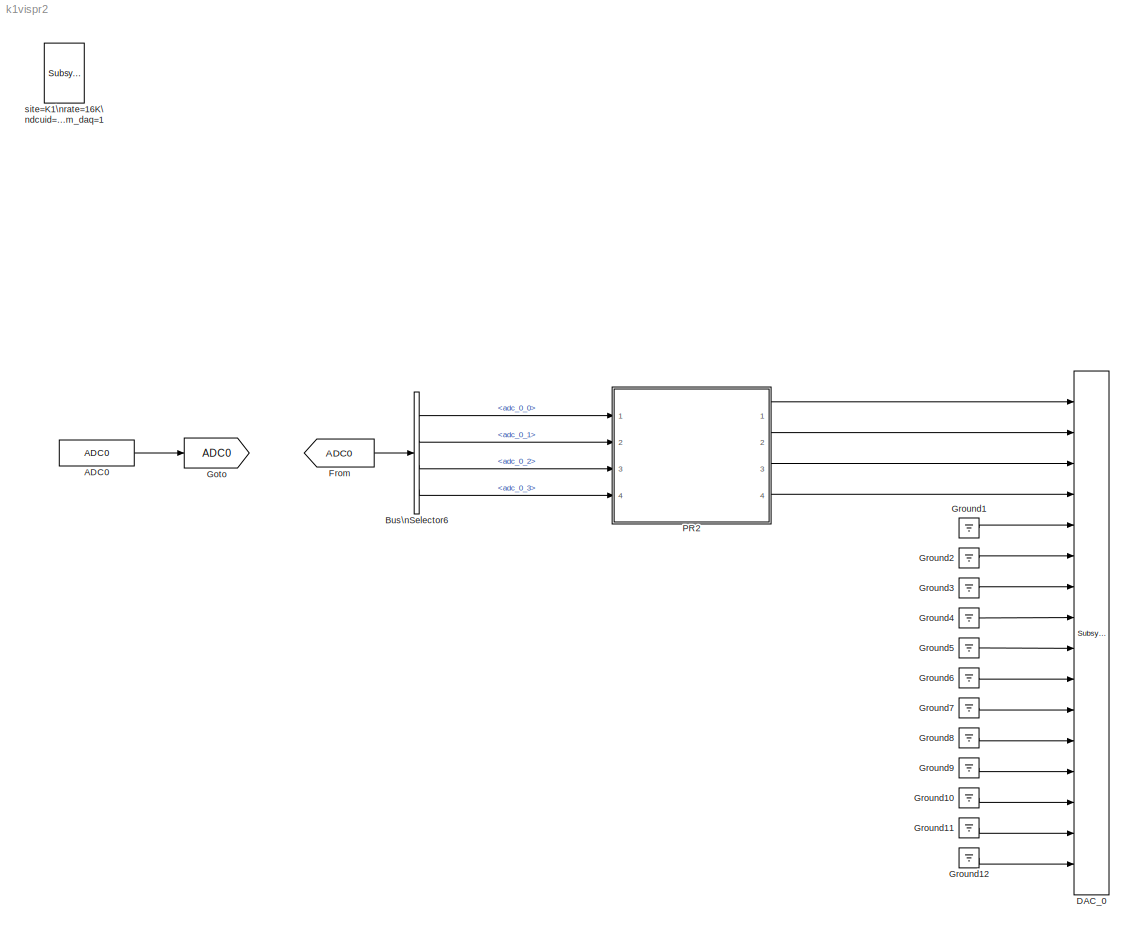
MODEL k1vispr2
KIND model
BLOCK [Reference] ADC0  REF=cdsAdcx0/ADC0
  AttributesFormatString = %<Description>\\n%<Tag>
  Description = type-GSC_16AI64SSA\ncard_num=0
  Ports = [0, 1]
  SID = 271
  SourceBlock = cdsAdcx0/ADC0
  SourceType = SubSystem
  Tag = cdsAdc
BLOCK [BusSelector] Bus\nSelector6
  AttributesFormatString = %<Description>
  Description = ADC Selector
  OutputSignals = adc_0_0,adc_0_1,adc_0_2,adc_0_3
  Ports = [1, 4]
  SID = 284
BLOCK [Reference] DAC_0  REF=dac/Subsystem  (lib defined in slx_40ef132df75b, slx_b7657ccccc5b, +4 more)
  AttributesFormatString = %<Description>
  Description = type=GSC_16AO16,\ncard_num=0
  Ports = [16]
  SID = 378
  SourceBlock = dac/Subsystem
  SourceType = SubSystem
BLOCK [From] From
  GotoTag = ADC0
  SID = 397
BLOCK [Goto] Goto
  GotoTag = ADC0
  SID = 396
BLOCK [Ground] Ground1
  SID = 443
BLOCK [Ground] Ground10
  SID = 452
BLOCK [Ground] Ground11
  SID = 453
BLOCK [Ground] Ground12
  SID = 454
BLOCK [Ground] Ground2
  SID = 444
BLOCK [Ground] Ground3
  SID = 445
BLOCK [Ground] Ground4
  SID = 446
BLOCK [Ground] Ground5
  SID = 447
BLOCK [Ground] Ground6
  SID = 448
BLOCK [Ground] Ground7
  SID = 449
BLOCK [Ground] Ground8
  SID = 450
BLOCK [Ground] Ground9
  SID = 451
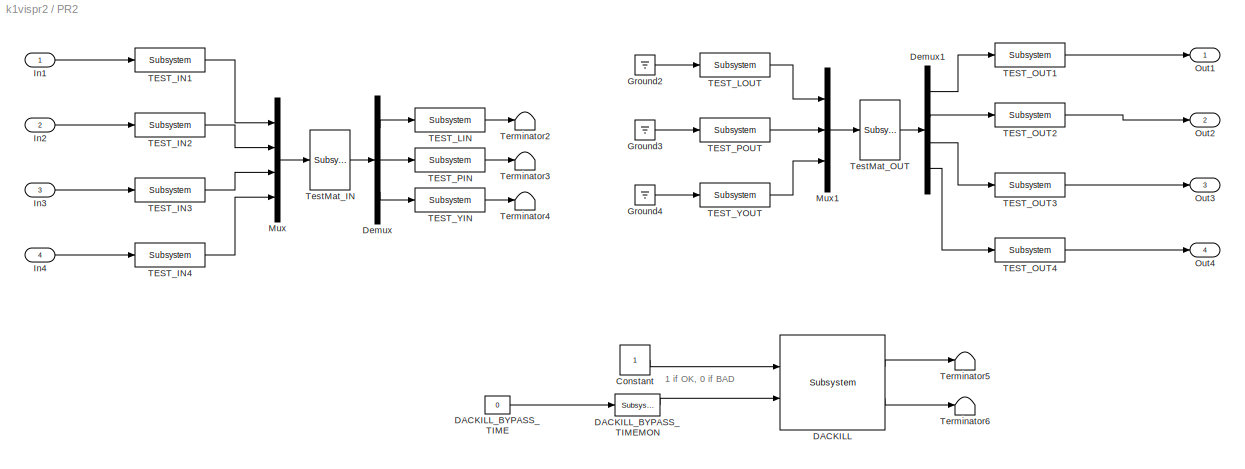
BLOCK [SubSystem] PR2
  Ports = [4, 4]
  RequestExecContextInheritance = off
  SID = 434
  Tag = top_names
BLOCK [Constant] PR2/Constant
  SID = 474
BLOCK [Reference] PR2/DACKILL  REF=cdsDacKill/Subsystem
  AttributesFormatString = %<Description>
  Description = cdsDacKill
  Ports = [2, 2]
  SID = 467
  SourceBlock = cdsDacKill/Subsystem
  SourceType = SubSystem
BLOCK [Constant] PR2/DACKILL_BYPASS_TIME
  SID = 468
  Value = 0
BLOCK [Reference] PR2/DACKILL_BYPASS_TIMEMON  REF=cdsEpicsOut/Subsystem
  AttributesFormatString = %<Tag>
  Description = Purpose:                                          \nOutput a FE signal to an EPICS channel.           \n                                                  \nOperation:                                        \nTakes input value and passes it to EPICS record.  \n                                                  \nUsage:                                            \nName the part with the desired EPICS...<+14ch>
  Ports = [1, 1]
  SID = 469
  SourceBlock = cdsEpicsOut/Subsystem
  SourceType = SubSystem
  Tag = cdsEpicsOutput
BLOCK [Demux] PR2/Demux
  DisplayOption = bar
  Outputs = 3
  Ports = [1, 3]
  SID = 455
BLOCK [Demux] PR2/Demux1
  DisplayOption = bar
  Ports = [1, 4]
  SID = 461
BLOCK [Ground] PR2/Ground2
  SID = 428
BLOCK [Ground] PR2/Ground3
  SID = 430
BLOCK [Ground] PR2/Ground4
  SID = 432
BLOCK [Inport] PR2/In1
  IconDisplay = Port number
  SID = 435
BLOCK [Inport] PR2/In2
  IconDisplay = Port number
  Port = 2
  SID = 436
BLOCK [Inport] PR2/In3
  IconDisplay = Port number
  Port = 3
  SID = 437
BLOCK [Inport] PR2/In4
  IconDisplay = Port number
  Port = 4
  SID = 438
BLOCK [Mux] PR2/Mux
  DisplayOption = bar
  Ports = [4, 1]
  SID = 456
BLOCK [Mux] PR2/Mux1
  DisplayOption = bar
  Inputs = 3
  Ports = [3, 1]
  SID = 462
BLOCK [Outport] PR2/Out1
  IconDisplay = Port number
  SID = 439
BLOCK [Outport] PR2/Out2
  IconDisplay = Port number
  Port = 2
  SID = 440
BLOCK [Outport] PR2/Out3
  IconDisplay = Port number
  Port = 3
  SID = 441
BLOCK [Outport] PR2/Out4
  IconDisplay = Port number
  Port = 4
  SID = 442
BLOCK [Reference] PR2/TEST_IN1  REF=cdsFilt/Subsystem
  AttributesFormatString = %<Tag>
  Description = Purpose:                                                                                                                                                                                                                                  \nStandard CDS IIR filter module.                                                                                                                                     ...<+1302ch>  <repeated x14 — deduplicated; at blocks: TEST_IN1, TEST_IN2, TEST_IN3, TEST_IN4, TEST_LIN, TEST_LOUT, TEST_OUT1, TEST_OUT2, TEST_OUT3, TEST_OUT4, TEST_PIN, TEST_POUT, TEST_YIN, TEST_YOUT>
  Ports = [1, 1]
  SID = 419
  SourceBlock = cdsFilt/Subsystem
  SourceType = SubSystem
  Tag = cdsFilt
BLOCK [Reference] PR2/TEST_IN2  REF=cdsFilt/Subsystem
  AttributesFormatString = %<Tag>
  Ports = [1, 1]
  SID = 420
  SourceBlock = cdsFilt/Subsystem
  SourceType = SubSystem
  Tag = cdsFilt
BLOCK [Reference] PR2/TEST_IN3  REF=cdsFilt/Subsystem
  AttributesFormatString = %<Tag>
  Ports = [1, 1]
  SID = 422
  SourceBlock = cdsFilt/Subsystem
  SourceType = SubSystem
  Tag = cdsFilt
BLOCK [Reference] PR2/TEST_IN4  REF=cdsFilt/Subsystem
  AttributesFormatString = %<Tag>
  Ports = [1, 1]
  SID = 424
  SourceBlock = cdsFilt/Subsystem
  SourceType = SubSystem
  Tag = cdsFilt
BLOCK [Reference] PR2/TEST_LIN  REF=cdsFilt/Subsystem
  AttributesFormatString = %<Tag>
  Ports = [1, 1]
  SID = 458
  SourceBlock = cdsFilt/Subsystem
  SourceType = SubSystem
  Tag = cdsFilt
BLOCK [Reference] PR2/TEST_LOUT  REF=cdsFilt/Subsystem
  AttributesFormatString = %<Tag>
  Ports = [1, 1]
  SID = 464
  SourceBlock = cdsFilt/Subsystem
  SourceType = SubSystem
  Tag = cdsFilt
BLOCK [Reference] PR2/TEST_OUT1  REF=cdsFilt/Subsystem
  AttributesFormatString = %<Tag>
  Ports = [1, 1]
  SID = 426
  SourceBlock = cdsFilt/Subsystem
  SourceType = SubSystem
  Tag = cdsFilt
BLOCK [Reference] PR2/TEST_OUT2  REF=cdsFilt/Subsystem
  AttributesFormatString = %<Tag>
  Ports = [1, 1]
  SID = 429
  SourceBlock = cdsFilt/Subsystem
  SourceType = SubSystem
  Tag = cdsFilt
BLOCK [Reference] PR2/TEST_OUT3  REF=cdsFilt/Subsystem
  AttributesFormatString = %<Tag>
  Ports = [1, 1]
  SID = 431
  SourceBlock = cdsFilt/Subsystem
  SourceType = SubSystem
  Tag = cdsFilt
BLOCK [Reference] PR2/TEST_OUT4  REF=cdsFilt/Subsystem
  AttributesFormatString = %<Tag>
  Ports = [1, 1]
  SID = 433
  SourceBlock = cdsFilt/Subsystem
  SourceType = SubSystem
  Tag = cdsFilt
BLOCK [Reference] PR2/TEST_PIN  REF=cdsFilt/Subsystem
  AttributesFormatString = %<Tag>
  Ports = [1, 1]
  SID = 459
  SourceBlock = cdsFilt/Subsystem
  SourceType = SubSystem
  Tag = cdsFilt
BLOCK [Reference] PR2/TEST_POUT  REF=cdsFilt/Subsystem
  AttributesFormatString = %<Tag>
  Ports = [1, 1]
  SID = 465
  SourceBlock = cdsFilt/Subsystem
  SourceType = SubSystem
  Tag = cdsFilt
BLOCK [Reference] PR2/TEST_YIN  REF=cdsFilt/Subsystem
  AttributesFormatString = %<Tag>
  Ports = [1, 1]
  SID = 460
  SourceBlock = cdsFilt/Subsystem
  SourceType = SubSystem
  Tag = cdsFilt
BLOCK [Reference] PR2/TEST_YOUT  REF=cdsFilt/Subsystem
  AttributesFormatString = %<Tag>
  Ports = [1, 1]
  SID = 466
  SourceBlock = cdsFilt/Subsystem
  SourceType = SubSystem
  Tag = cdsFilt
BLOCK [Terminator] PR2/Terminator2
  SID = 421
BLOCK [Terminator] PR2/Terminator3
  SID = 423
BLOCK [Terminator] PR2/Terminator4
  SID = 425
BLOCK [Terminator] PR2/Terminator5
  SID = 471
BLOCK [Terminator] PR2/Terminator6
  SID = 472
BLOCK [Reference] PR2/TestMat_IN  REF=cdsMuxMatrix/Subsystem
  AttributesFormatString = %<Tag>
  Description = Any size matrix. Inputs and outputs must be connected using Mux and Demux parts.
  Ports = [1, 1]
  SID = 457
  SourceBlock = cdsMuxMatrix/Subsystem
  SourceType = SubSystem
  Tag = cdsMuxMatrix
BLOCK [Reference] PR2/TestMat_OUT  REF=cdsMuxMatrix/Subsystem
  AttributesFormatString = %<Tag>
  Description = Any size matrix. Inputs and outputs must be connected using Mux and Demux parts.
  Ports = [1, 1]
  SID = 463
  SourceBlock = cdsMuxMatrix/Subsystem
  SourceType = SubSystem
  Tag = cdsMuxMatrix
BLOCK [Reference] site=K1\nrate=16K\ndcuid=91\nhost=k1pr2\nspecific_cpu=3\nadcSlave=1\nshmem_daq=1  REF=cdsParameters/Subsystem
  AttributesFormatString = %<Tag>
  Description = Purpose:                                                                                                                                                                                                                                \nProvide system parameters to the FE code generator to properly configure the generated EPICS names, rep rate of the FE controller, and the Data Acquisition node ID fo...<+2934ch>
  Ports = [1, 1]
  SID = 336
  SourceBlock = cdsParameters/Subsystem
  SourceType = SubSystem
  Tag = cdsParameters
ANNOTATION PR2: 1 if OK, 0 if BAD
LINE ADC0:1 -> Goto:1
LINE Bus\nSelector6:1 -> PR2:1
LINE Bus\nSelector6:2 -> PR2:2
LINE Bus\nSelector6:3 -> PR2:3
LINE Bus\nSelector6:4 -> PR2:4
LINE From:1 -> Bus\nSelector6:1
LINE Ground10:1 -> DAC_0:14
LINE Ground11:1 -> DAC_0:15
LINE Ground12:1 -> DAC_0:16
LINE Ground1:1 -> DAC_0:5
LINE Ground2:1 -> DAC_0:6
LINE Ground3:1 -> DAC_0:7
LINE Ground4:1 -> DAC_0:8
LINE Ground5:1 -> DAC_0:9
LINE Ground6:1 -> DAC_0:10
LINE Ground7:1 -> DAC_0:11
LINE Ground8:1 -> DAC_0:12
LINE Ground9:1 -> DAC_0:13
LINE PR2/Constant:1 -> PR2/DACKILL:1
LINE PR2/DACKILL:1 -> PR2/Terminator5:1
LINE PR2/DACKILL:2 -> PR2/Terminator6:1
LINE PR2/DACKILL_BYPASS_TIME:1 -> PR2/DACKILL_BYPASS_TIMEMON:1
LINE PR2/DACKILL_BYPASS_TIMEMON:1 -> PR2/DACKILL:2
LINE PR2/Demux1:1 -> PR2/TEST_OUT1:1
LINE PR2/Demux1:2 -> PR2/TEST_OUT2:1
LINE PR2/Demux1:3 -> PR2/TEST_OUT3:1
LINE PR2/Demux1:4 -> PR2/TEST_OUT4:1
LINE PR2/Demux:1 -> PR2/TEST_LIN:1
LINE PR2/Demux:2 -> PR2/TEST_PIN:1
LINE PR2/Demux:3 -> PR2/TEST_YIN:1
LINE PR2/Ground2:1 -> PR2/TEST_LOUT:1
LINE PR2/Ground3:1 -> PR2/TEST_POUT:1
LINE PR2/Ground4:1 -> PR2/TEST_YOUT:1
LINE PR2/In1:1 -> PR2/TEST_IN1:1
LINE PR2/In2:1 -> PR2/TEST_IN2:1
LINE PR2/In3:1 -> PR2/TEST_IN3:1
LINE PR2/In4:1 -> PR2/TEST_IN4:1
LINE PR2/Mux1:1 -> PR2/TestMat_OUT:1
LINE PR2/Mux:1 -> PR2/TestMat_IN:1
LINE PR2/TEST_IN1:1 -> PR2/Mux:1
LINE PR2/TEST_IN2:1 -> PR2/Mux:2
LINE PR2/TEST_IN3:1 -> PR2/Mux:3
LINE PR2/TEST_IN4:1 -> PR2/Mux:4
LINE PR2/TEST_LIN:1 -> PR2/Terminator2:1
LINE PR2/TEST_LOUT:1 -> PR2/Mux1:1
LINE PR2/TEST_OUT1:1 -> PR2/Out1:1
LINE PR2/TEST_OUT2:1 -> PR2/Out2:1
LINE PR2/TEST_OUT3:1 -> PR2/Out3:1
LINE PR2/TEST_OUT4:1 -> PR2/Out4:1
LINE PR2/TEST_PIN:1 -> PR2/Terminator3:1
LINE PR2/TEST_POUT:1 -> PR2/Mux1:2
LINE PR2/TEST_YIN:1 -> PR2/Terminator4:1
LINE PR2/TEST_YOUT:1 -> PR2/Mux1:3
LINE PR2/TestMat_IN:1 -> PR2/Demux:1
LINE PR2/TestMat_OUT:1 -> PR2/Demux1:1
LINE PR2:1 -> DAC_0:1
LINE PR2:2 -> DAC_0:2
LINE PR2:3 -> DAC_0:3
LINE PR2:4 -> DAC_0:4
